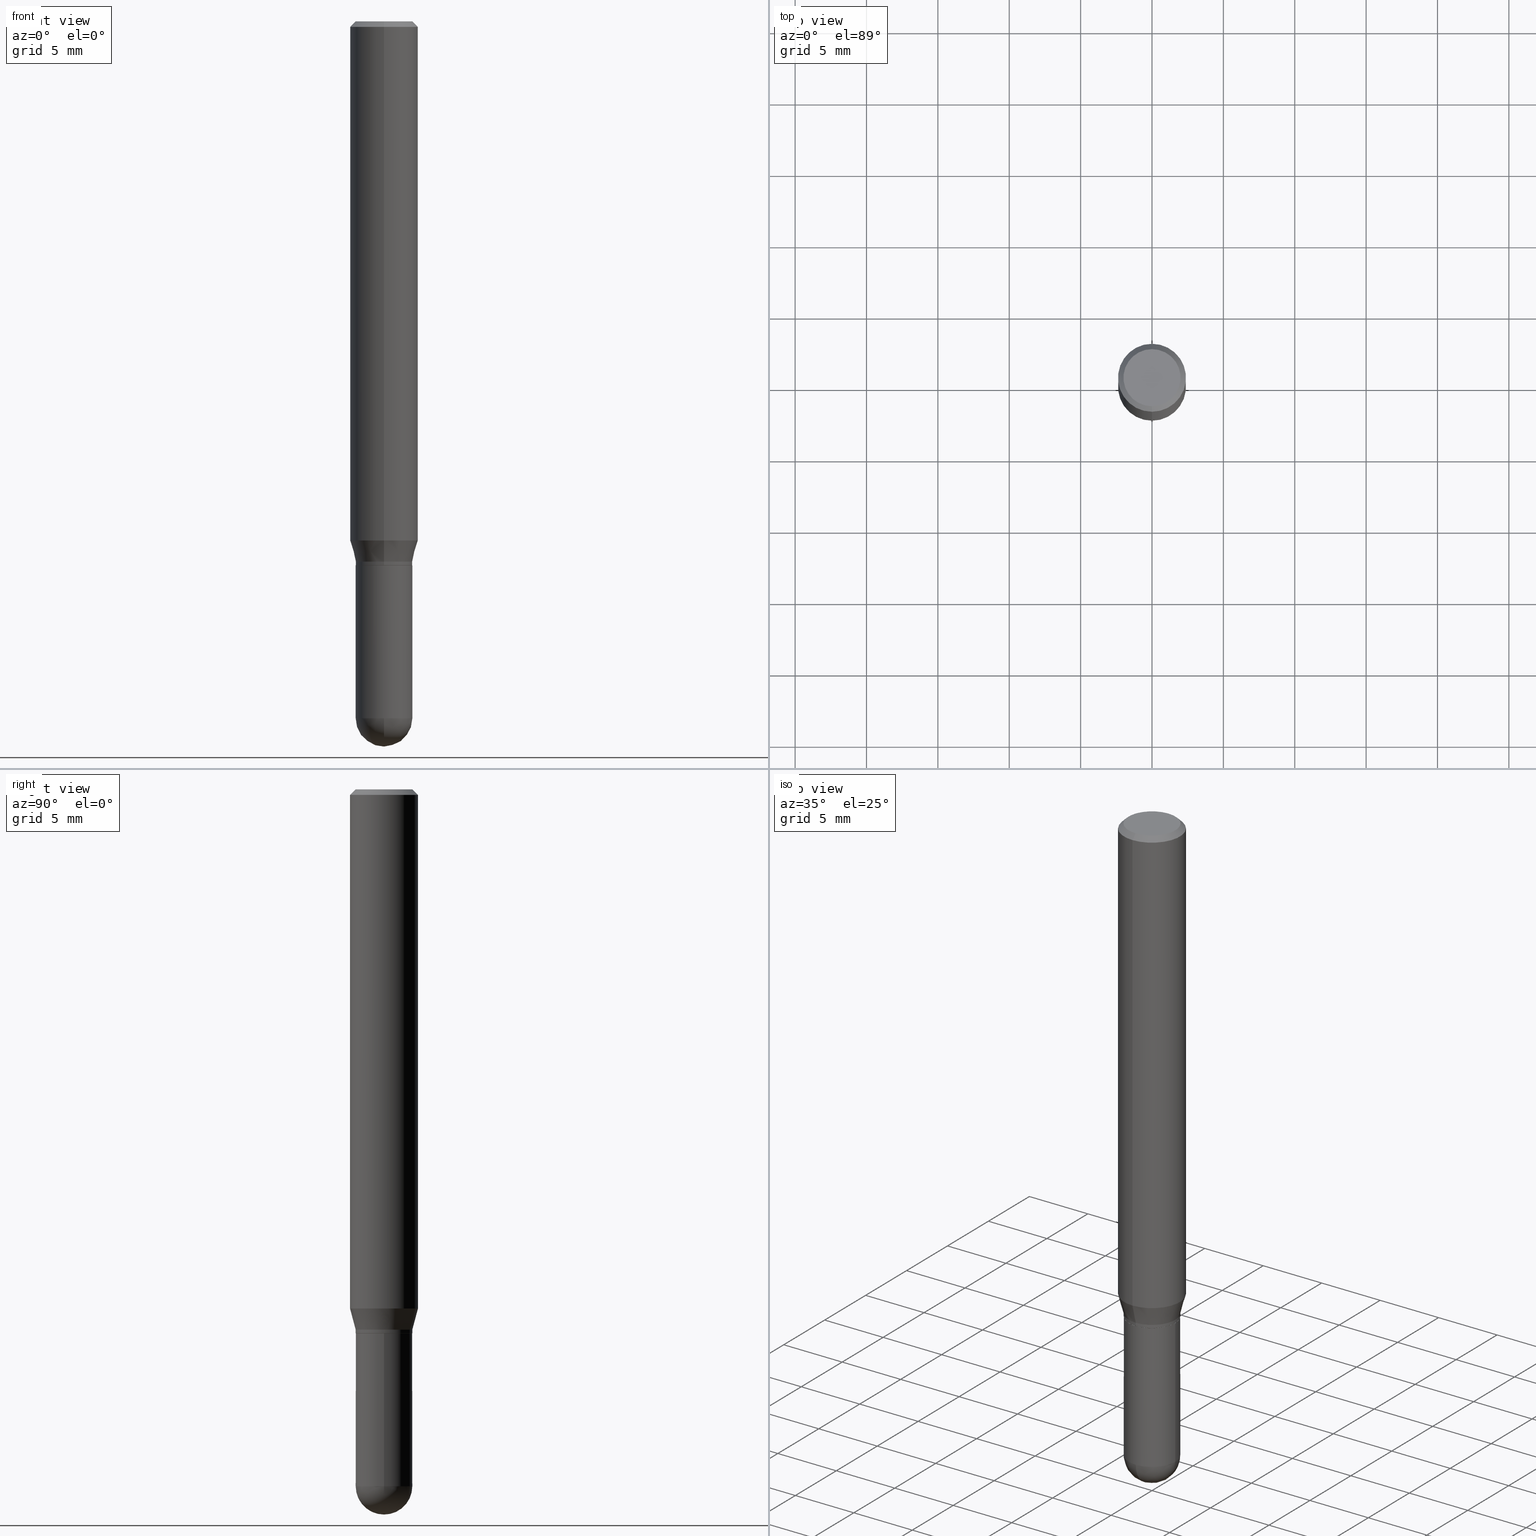
[diagram: canonical four-view strip — front | top / right | iso, engineering-drawing reading convention]
A machine part, canonical four-view strip (front | top / right | iso — engineering-drawing reading convention). The complete STEP part file that produces these views, byte-faithful:
ISO-10303-21;
HEADER;
FILE_DESCRIPTION (( 'STEP AP203' ),
    '1' );
FILE_NAME ('30480.STEP',
    '2024-03-08T15:25:17',
    ( '' ),
    ( '' ),
    'SwSTEP 2.0',
    'SolidWorks 2023',
    '' );
FILE_SCHEMA (( 'CONFIG_CONTROL_DESIGN' ));
ENDSEC;

DATA;
#1 = DIRECTION ( 'NONE',  ( -6.982962677686265922E-15, -1.000000000000000000, 3.520422672247761757E-15 ) ) ;
#2 = CIRCLE ( 'NONE', #281, 0.07810000000000000275 ) ;
#3 = SECURITY_CLASSIFICATION ( '', '', #407 ) ;
#4 = CARTESIAN_POINT ( 'NONE',  ( -6.546527510330875041E-16, -0.09375000000000001388, 3.273862860613314496E-16 ) ) ;
#5 = CC_DESIGN_PERSON_AND_ORGANIZATION_ASSIGNMENT ( #17, #60, ( #3 ) ) ;
#6 = DIRECTION ( 'NONE',  ( -2.445468806185136597E-29, 3.491481338843145583E-15, 1.000000000000000000 ) ) ;
#7 = EDGE_CURVE ( 'NONE', #346, #276, #386, .T. ) ;
#8 = ADVANCED_FACE ( 'NONE', ( #509 ), #461, .T. ) ;
#9 = CARTESIAN_POINT ( 'NONE',  ( 5.549338766286364898E-16, 0.07809999999999978071, -2.727346020414923541E-16 ) ) ;
#10 = CIRCLE ( 'NONE', #302, 0.09375000000000001388 ) ;
#11 = EDGE_LOOP ( 'NONE', ( #327, #487, #189, #274 ) ) ;
#12 = COORDINATED_UNIVERSAL_TIME_OFFSET ( 5, 0, .BEHIND. ) ;
#13 = DIRECTION ( 'NONE',  ( 6.982962677686265922E-15, 1.000000000000000000, -3.483106191921935160E-15 ) ) ;
#14 = UNCERTAINTY_MEASURE_WITH_UNIT (LENGTH_MEASURE( 1.000000000000000082E-05 ), #225, 'distance_accuracy_value', 'NONE');
#15 = DIRECTION ( 'NONE',  ( 2.438088387897960049E-29, -3.491481338843145188E-15, -1.000000000000000000 ) ) ;
#16 = ORIENTED_EDGE ( 'NONE', *, *, #104, .F. ) ;
#17 = PERSON_AND_ORGANIZATION ( #44, #429 ) ;
#18 = EDGE_CURVE ( 'NONE', #494, #300, #29, .T. ) ;
#19 = CARTESIAN_POINT ( 'NONE',  ( 0.07810000000000000275, -5.453693851272974364E-16, 3.808294061896625703E-30 ) ) ;
#20 = ORIENTED_EDGE ( 'NONE', *, *, #207, .F. ) ;
#21 = APPROVAL_STATUS ( 'not_yet_approved' ) ;
#22 = PLANE ( 'NONE',  #64 ) ;
#23 = CONICAL_SURFACE ( 'NONE', #322, 0.07760000000000000231, 0.7853981633974653764 ) ;
#24 = CIRCLE ( 'NONE', #308, 0.07760000000000000231 ) ;
#25 = ORIENTED_EDGE ( 'NONE', *, *, #95, .F. ) ;
#26 = ORIENTED_EDGE ( 'NONE', *, *, #186, .F. ) ;
#27 = COORDINATED_UNIVERSAL_TIME_OFFSET ( 5, 0, .BEHIND. ) ;
#28 = PRODUCT ( '30480', '30480', '', ( #244 ) ) ;
#29 = LINE ( 'NONE', #500, #191 ) ;
#30 = VERTEX_POINT ( 'NONE', #185 ) ;
#31 = AXIS2_PLACEMENT_3D ( 'NONE', #321, #395, #412 ) ;
#32 = CC_DESIGN_APPROVAL ( #411, ( #3 ) ) ;
#33 = LINE ( 'NONE', #280, #265 ) ;
#34 = CYLINDRICAL_SURFACE ( 'NONE', #235, 0.09375000000000001388 ) ;
#35 = CC_DESIGN_DATE_AND_TIME_ASSIGNMENT ( #328, #170, ( #440 ) ) ;
#36 = ORIENTED_EDGE ( 'NONE', *, *, #260, .T. ) ;
#37 = ORIENTED_EDGE ( 'NONE', *, *, #207, .T. ) ;
#38 = CONICAL_SURFACE ( 'NONE', #397, 0.09375000000000001388, 0.7853981633974480570 ) ;
#39 = CARTESIAN_POINT ( 'NONE',  ( 4.699946498607214373E-29, -6.710277985122641264E-15, -1.921900000000000164 ) ) ;
#40 = CC_DESIGN_APPROVAL ( #87, ( #245 ) ) ;
#41 = AXIS2_PLACEMENT_3D ( 'NONE', #325, #486, #288 ) ;
#42 = DIRECTION ( 'NONE',  ( 1.000000000000000000, -6.982962677686266711E-15, 0.000000000000000000 ) ) ;
#43 = CARTESIAN_POINT ( 'NONE',  ( -5.453693851272583878E-16, -0.07810000000000484610, -1.489999999999999769 ) ) ;
#44 = PERSON ( 'UNSPECIFIED', 'UNSPECIFIED', 'UNSPECIFIED', ('UNSPECIFIED'), ('UNSPECIFIED'), ('UNSPECIFIED') ) ;
#45 = DIRECTION ( 'NONE',  ( -4.851104656540962697E-15, -0.7071067811865497932, -0.7071067811865452413 ) ) ;
#46 = PERSON_AND_ORGANIZATION_ROLE ( 'design_owner' ) ;
#47 = CARTESIAN_POINT ( 'NONE',  ( 4.699946498607214373E-29, -6.710277985122641264E-15, -1.921900000000000164 ) ) ;
#48 = AXIS2_PLACEMENT_3D ( 'NONE', #285, #238, #444 ) ;
#49 = AXIS2_PLACEMENT_3D ( 'NONE', #329, #362, #164 ) ;
#50 = DIRECTION ( 'NONE',  ( -2.445022562880343100E-29, 3.492120384654201603E-15, 1.000000000000000000 ) ) ;
#51 = CALENDAR_DATE ( 2024, 8, 3 ) ;
#52 = DIRECTION ( 'NONE',  ( -2.445022562880342820E-29, 3.492120384654201603E-15, 1.000000000000000000 ) ) ;
#53 = EDGE_CURVE ( 'NONE', #348, #100, #97, .T. ) ;
#54 = AXIS2_PLACEMENT_3D ( 'NONE', #47, #482, #153 ) ;
#55 = FACE_OUTER_BOUND ( 'NONE', #94, .T. ) ;
#56 = ORIENTED_EDGE ( 'NONE', *, *, #223, .F. ) ;
#57 = DATE_TIME_ROLE ( 'classification_date' ) ;
#58 = CARTESIAN_POINT ( 'NONE',  ( 6.661338147751288313E-16, 0.09374999999999500400, -1.431593404861545960 ) ) ;
#59 = ORIENTED_EDGE ( 'NONE', *, *, #508, .F. ) ;
#60 = PERSON_AND_ORGANIZATION_ROLE ( 'classification_officer' ) ;
#61 = FACE_OUTER_BOUND ( 'NONE', #148, .T. ) ;
#62 = ORIENTED_EDGE ( 'NONE', *, *, #352, .F. ) ;
#63 = DIRECTION ( 'NONE',  ( 2.445022562880342820E-29, -3.492120384654201603E-15, -1.000000000000000000 ) ) ;
#64 = AXIS2_PLACEMENT_3D ( 'NONE', #130, #15, #331 ) ;
#65 = LOCAL_TIME ( 10, 25, 17.00000000000000000, #485 ) ;
#66 = ORIENTED_EDGE ( 'NONE', *, *, #361, .T. ) ;
#67 = DIRECTION ( 'NONE',  ( 1.000000000000000000, -6.982962677686266711E-15, 4.876176775795935232E-29 ) ) ;
#68 = VERTEX_POINT ( 'NONE', #305 ) ;
#69 = COORDINATED_UNIVERSAL_TIME_OFFSET ( 5, 0, .BEHIND. ) ;
#70 = PRODUCT_RELATED_PRODUCT_CATEGORY ( 'detail', '', ( #28 ) ) ;
#71 = ORIENTED_EDGE ( 'NONE', *, *, #120, .F. ) ;
#72 = DIRECTION ( 'NONE',  ( -2.445022562880343100E-29, 3.492120384654201603E-15, 1.000000000000000000 ) ) ;
#73 = ORIENTED_EDGE ( 'NONE', *, *, #507, .F. ) ;
#74 = CIRCLE ( 'NONE', #31, 0.09375000000000001388 ) ;
#75 = ORIENTED_EDGE ( 'NONE', *, *, #178, .T. ) ;
#76 = DIRECTION ( 'NONE',  ( 4.937700262164546464E-15, 0.7071067811865449082, -0.7071067811865501263 ) ) ;
#77 = EDGE_LOOP ( 'NONE', ( #134, #146, #139, #406 ) ) ;
#78 = CARTESIAN_POINT ( 'NONE',  ( 0.000000000000000000, 0.000000000000000000, 0.000000000000000000 ) ) ;
#79 = CARTESIAN_POINT ( 'NONE',  ( 3.667533844320509501E-31, -5.238180576981294836E-17, -0.01499999999999997863 ) ) ;
#80 = CIRCLE ( 'NONE', #48, 0.09375000000000001388 ) ;
#81 = AXIS2_PLACEMENT_3D ( 'NONE', #241, #248, #158 ) ;
#82 = DIRECTION ( 'NONE',  ( -2.445022562880343100E-29, 3.492120384654201603E-15, 1.000000000000000000 ) ) ;
#83 = PERSON_AND_ORGANIZATION ( #44, #429 ) ;
#84 = FACE_OUTER_BOUND ( 'NONE', #142, .T. ) ;
#85 = CARTESIAN_POINT ( 'NONE',  ( 6.661338147751291272E-16, 0.09374999999999995837, -0.01500000000000030476 ) ) ;
#86 = APPLICATION_PROTOCOL_DEFINITION ( 'international standard', 'config_control_design', 1994, #424 ) ;
#87 = APPROVAL ( #340, 'UNSPECIFIED' ) ;
#88 = CIRCLE ( 'NONE', #49, 0.07809999999999991949 ) ;
#89 = CARTESIAN_POINT ( 'NONE',  ( 3.667533844320514651E-29, -5.238180576981301616E-15, -1.500000000000000222 ) ) ;
#90 = ADVANCED_FACE ( 'NONE', ( #466 ), #34, .T. ) ;
#91 = SPHERICAL_SURFACE ( 'NONE', #451, 0.07809999999999996112 ) ;
#92 = APPROVAL_DATE_TIME ( #324, #421 ) ;
#93 = DIRECTION ( 'NONE',  ( 2.445022562880343100E-29, -3.492120384654201603E-15, -1.000000000000000000 ) ) ;
#94 = EDGE_LOOP ( 'NONE', ( #422, #106 ) ) ;
#95 = EDGE_CURVE ( 'NONE', #233, #290, #242, .T. ) ;
#96 = DIRECTION ( 'NONE',  ( -2.445022562880343100E-29, 3.492120384654201603E-15, 1.000000000000000000 ) ) ;
#97 = CIRCLE ( 'NONE', #264, 0.07810000000000000275 ) ;
#98 = AXIS2_PLACEMENT_3D ( 'NONE', #78, #229, #476 ) ;
#99 = FACE_OUTER_BOUND ( 'NONE', #388, .T. ) ;
#100 = VERTEX_POINT ( 'NONE', #353 ) ;
#101 = CARTESIAN_POINT ( 'NONE',  ( 3.667533844320514651E-29, -5.238180576981301616E-15, -1.500000000000000222 ) ) ;
#102 = EDGE_LOOP ( 'NONE', ( #430, #224, #211, #71 ) ) ;
#103 = CC_DESIGN_PERSON_AND_ORGANIZATION_ASSIGNMENT ( #492, #376, ( #245 ) ) ;
#104 = EDGE_CURVE ( 'NONE', #491, #263, #163, .T. ) ;
#105 = EDGE_CURVE ( 'NONE', #300, #290, #434, .T. ) ;
#106 = ORIENTED_EDGE ( 'NONE', *, *, #151, .T. ) ;
#107 = ADVANCED_FACE ( 'NONE', ( #84 ), #38, .T. ) ;
#108 = VECTOR ( 'NONE', #161, 39.37007874015748143 ) ;
#109 = APPROVAL_ROLE ( '' ) ;
#110 = DIMENSIONAL_EXPONENTS ( 1.000000000000000000, 0.000000000000000000, 0.000000000000000000, 0.000000000000000000, 0.000000000000000000, 0.000000000000000000, 0.000000000000000000 ) ;
#111 = ORIENTED_EDGE ( 'NONE', *, *, #368, .F. ) ;
#112 = ORIENTED_EDGE ( 'NONE', *, *, #394, .T. ) ;
#113 = EDGE_CURVE ( 'NONE', #68, #472, #184, .T. ) ;
#114 = ORIENTED_EDGE ( 'NONE', *, *, #502, .T. ) ;
#115 = VECTOR ( 'NONE', #357, 39.37007874015748143 ) ;
#116 = AXIS2_PLACEMENT_3D ( 'NONE', #304, #371, #67 ) ;
#117 =( NAMED_UNIT ( * ) SI_UNIT ( $, .STERADIAN. ) SOLID_ANGLE_UNIT ( ) );
#118 = EDGE_LOOP ( 'NONE', ( #216, #228, #269, #381, #448 ) ) ;
#119 = CARTESIAN_POINT ( 'NONE',  ( 4.693267649888723399E-29, -6.719842476623982487E-15, -1.921900000000000164 ) ) ;
#120 = EDGE_CURVE ( 'NONE', #346, #494, #364, .T. ) ;
#121 = LINE ( 'NONE', #127, #251 ) ;
#122 = DIRECTION ( 'NONE',  ( -6.982962677686265922E-15, -1.000000000000000000, 3.497884755011876582E-15 ) ) ;
#123 = CARTESIAN_POINT ( 'NONE',  ( 4.693267649888723399E-29, -6.719842476623982487E-15, -1.921900000000000164 ) ) ;
#124 = AXIS2_PLACEMENT_3D ( 'NONE', #320, #82, #441 ) ;
#125 = DIRECTION ( 'NONE',  ( -6.982962677686265922E-15, -1.000000000000000000, 2.913971193241880372E-15 ) ) ;
#126 = DIRECTION ( 'NONE',  ( -6.982962677686264344E-15, -1.000000000000000000, 3.492120384654201209E-15 ) ) ;
#127 = CARTESIAN_POINT ( 'NONE',  ( -5.418779037884175500E-16, -0.07760000000000523424, -1.499999999999999778 ) ) ;
#128 = LINE ( 'NONE', #160, #115 ) ;
#129 = AXIS2_PLACEMENT_3D ( 'NONE', #512, #307, #234 ) ;
#130 = CARTESIAN_POINT ( 'NONE',  ( 5.453693851273340198E-16, 0.07809999999999475695, -1.500000000000000222 ) ) ;
#131 = CARTESIAN_POINT ( 'NONE',  ( -5.453693851272600641E-16, -0.07810000000000515141, -1.499500000000000055 ) ) ;
#132 = ORIENTED_EDGE ( 'NONE', *, *, #480, .F. ) ;
#133 = COORDINATED_UNIVERSAL_TIME_OFFSET ( 5, 0, .BEHIND. ) ;
#134 = ORIENTED_EDGE ( 'NONE', *, *, #178, .F. ) ;
#135 = FACE_OUTER_BOUND ( 'NONE', #118, .T. ) ;
#136 = AXIS2_PLACEMENT_3D ( 'NONE', #442, #363, #199 ) ;
#137 = VERTEX_POINT ( 'NONE', #202 ) ;
#138 = CARTESIAN_POINT ( 'NONE',  ( -5.453693851272958587E-16, -0.07809999999999978071, 2.727346020414923541E-16 ) ) ;
#139 = ORIENTED_EDGE ( 'NONE', *, *, #105, .T. ) ;
#140 = DATE_AND_TIME ( #173, #323 ) ;
#141 = FACE_OUTER_BOUND ( 'NONE', #465, .T. ) ;
#142 = EDGE_LOOP ( 'NONE', ( #56, #498, #37, #59 ) ) ;
#143 = APPROVAL_PERSON_ORGANIZATION ( #370, #87, #109 ) ;
#144 = DIRECTION ( 'NONE',  ( -1.807323732225326589E-15, -0.2588190451025176864, 0.9659258262890690894 ) ) ;
#145 = DIRECTION ( 'NONE',  ( 1.000000000000000000, -6.982962677686266711E-15, 0.000000000000000000 ) ) ;
#146 = ORIENTED_EDGE ( 'NONE', *, *, #480, .T. ) ;
#147 = FACE_OUTER_BOUND ( 'NONE', #306, .T. ) ;
#148 = EDGE_LOOP ( 'NONE', ( #25, #62, #231, #114 ) ) ;
#149 = AXIS2_PLACEMENT_3D ( 'NONE', #314, #50, #398 ) ;
#150 = PRODUCT_DEFINITION_SHAPE ( 'NONE', 'NONE',  #440 ) ;
#151 = EDGE_CURVE ( 'NONE', #100, #348, #2, .T. ) ;
#152 = DIRECTION ( 'NONE',  ( -2.445022562880343100E-29, 3.492120384654201603E-15, 1.000000000000000000 ) ) ;
#153 = DIRECTION ( 'NONE',  ( 1.000000000000000000, -6.982962677686266711E-15, 0.000000000000000000 ) ) ;
#154 = FACE_OUTER_BOUND ( 'NONE', #504, .T. ) ;
#155 = CLOSED_SHELL ( 'NONE', ( #425, #443, #107, #205, #464, #8, #90, #330, #299, #404, #218, #457 ) ) ;
#156 = AXIS2_PLACEMENT_3D ( 'NONE', #414, #294, #463 ) ;
#157 = CYLINDRICAL_SURFACE ( 'NONE', #124, 0.09375000000000001388 ) ;
#158 = DIRECTION ( 'NONE',  ( 1.000000000000000000, 0.000000000000000000, 0.000000000000000000 ) ) ;
#159 = EDGE_CURVE ( 'NONE', #271, #137, #243, .T. ) ;
#160 = CARTESIAN_POINT ( 'NONE',  ( 5.513811629498742455E-16, 0.07759999999999475651, -1.500000000000000444 ) ) ;
#161 = DIRECTION ( 'NONE',  ( -2.445022562880342820E-29, 3.492120384654201603E-15, 1.000000000000000000 ) ) ;
#162 = APPROVAL_ROLE ( '' ) ;
#163 = CIRCLE ( 'NONE', #136, 0.07809999999999991949 ) ;
#164 = DIRECTION ( 'NONE',  ( -6.982962677686265133E-15, -1.000000000000000000, 3.497884755011864354E-15 ) ) ;
#165 = EDGE_CURVE ( 'NONE', #379, #68, #333, .T. ) ;
#166 = EDGE_LOOP ( 'NONE', ( #309, #36, #336, #258, #303 ) ) ;
#167 = CALENDAR_DATE ( 2024, 8, 3 ) ;
#168 = CARTESIAN_POINT ( 'NONE',  ( -5.353897400011380051E-46, 7.646740987903862261E-32, 2.189712880892295595E-17 ) ) ;
#169 = EDGE_LOOP ( 'NONE', ( #418, #75, #20, #458 ) ) ;
#170 = DATE_TIME_ROLE ( 'creation_date' ) ;
#171 = DIRECTION ( 'NONE',  ( -2.445468806185136877E-29, 3.491481338843145188E-15, 1.000000000000000000 ) ) ;
#172 = EDGE_LOOP ( 'NONE', ( #222, #112, #339, #455 ) ) ;
#173 = CALENDAR_DATE ( 2024, 8, 3 ) ;
#174 = FACE_OUTER_BOUND ( 'NONE', #166, .T. ) ;
#175 = CIRCLE ( 'NONE', #477, 0.07875000000000001443 ) ;
#176 = CIRCLE ( 'NONE', #478, 0.07810000000000000275 ) ;
#177 = ORIENTED_EDGE ( 'NONE', *, *, #278, .F. ) ;
#178 = EDGE_CURVE ( 'NONE', #276, #221, #393, .T. ) ;
#179 = FACE_OUTER_BOUND ( 'NONE', #426, .T. ) ;
#180 = DIRECTION ( 'NONE',  ( -2.445022562880342820E-29, 3.492120384654201603E-15, 1.000000000000000000 ) ) ;
#181 = ORIENTED_EDGE ( 'NONE', *, *, #361, .F. ) ;
#182 = CYLINDRICAL_SURFACE ( 'NONE', #438, 0.07809999999999978071 ) ;
#183 = DIRECTION ( 'NONE',  ( 1.839019923739596765E-15, 0.2588190451025244587, 0.9659258262890673130 ) ) ;
#184 = CIRCLE ( 'NONE', #501, 0.07810000000000000275 ) ;
#185 = CARTESIAN_POINT ( 'NONE',  ( -5.418779037884175500E-16, -0.07760000000000523424, -1.499999999999999778 ) ) ;
#186 = EDGE_CURVE ( 'NONE', #30, #263, #121, .T. ) ;
#187 = ORIENTED_EDGE ( 'NONE', *, *, #7, .F. ) ;
#188 = SPHERICAL_SURFACE ( 'NONE', #273, 0.07809999999999996112 ) ;
#189 = ORIENTED_EDGE ( 'NONE', *, *, #337, .F. ) ;
#190 = EDGE_CURVE ( 'NONE', #375, #491, #128, .T. ) ;
#191 = VECTOR ( 'NONE', #144, 39.37007874015748854 ) ;
#192 = ORIENTED_EDGE ( 'NONE', *, *, #190, .T. ) ;
#193 = CONICAL_SURFACE ( 'NONE', #209, 0.09375000000000001388, 0.7853981633974480570 ) ;
#194 = FACE_OUTER_BOUND ( 'NONE', #172, .T. ) ;
#195 = CARTESIAN_POINT ( 'NONE',  ( 4.699946498607214373E-29, -6.710277985122641264E-15, -1.921900000000000164 ) ) ;
#196 = DIRECTION ( 'NONE',  ( 2.445022562880343100E-29, -3.492120384654201603E-15, -1.000000000000000000 ) ) ;
#197 = PERSON_AND_ORGANIZATION ( #44, #429 ) ;
#198 = DIRECTION ( 'NONE',  ( -1.000000000000000000, 7.105427357601001070E-15, -4.926315508542082329E-29 ) ) ;
#199 = DIRECTION ( 'NONE',  ( -6.982962677686265133E-15, -1.000000000000000000, 3.497884755011864354E-15 ) ) ;
#200 = APPROVAL_PERSON_ORGANIZATION ( #197, #421, #162 ) ;
#201 = CARTESIAN_POINT ( 'NONE',  ( 6.105338457019004099E-16, 0.07809999999999443776, -1.490000000000000213 ) ) ;
#202 = CARTESIAN_POINT ( 'NONE',  ( 5.453693851273441764E-16, 0.07809999999999325815, -1.921900000000000386 ) ) ;
#203 = CARTESIAN_POINT ( 'NONE',  ( 4.699946498607214373E-29, -6.710277985122641264E-15, -1.921900000000000164 ) ) ;
#204 = CARTESIAN_POINT ( 'NONE',  ( -5.353897400011380051E-46, 7.646740987903862261E-32, 2.189712880892295595E-17 ) ) ;
#205 = ADVANCED_FACE ( 'NONE', ( #282 ), #157, .T. ) ;
#206 = DIRECTION ( 'NONE',  ( -6.982962677686264344E-15, -1.000000000000000000, 3.492120384654201209E-15 ) ) ;
#207 = EDGE_CURVE ( 'NONE', #290, #221, #80, .T. ) ;
#208 = CARTESIAN_POINT ( 'NONE',  ( -0.07810000000000000275, 5.549338766286382647E-16, -3.841688305489081275E-30 ) ) ;
#209 = AXIS2_PLACEMENT_3D ( 'NONE', #215, #93, #13 ) ;
#210 = LOCAL_TIME ( 10, 25, 17.00000000000000000, #133 ) ;
#211 = ORIENTED_EDGE ( 'NONE', *, *, #278, .T. ) ;
#212 = ORIENTED_EDGE ( 'NONE', *, *, #186, .T. ) ;
#213 = CALENDAR_DATE ( 2024, 8, 3 ) ;
#214 = DIRECTION ( 'NONE',  ( -6.982962677686265922E-15, -1.000000000000000000, 3.520422672247761757E-15 ) ) ;
#215 = CARTESIAN_POINT ( 'NONE',  ( 3.667533844320509501E-31, -5.238180576981294836E-17, -0.01499999999999997863 ) ) ;
#216 = ORIENTED_EDGE ( 'NONE', *, *, #260, .F. ) ;
#217 = SHAPE_DEFINITION_REPRESENTATION ( #150, #474 ) ;
#218 = ADVANCED_FACE ( 'NONE', ( #154 ), #23, .T. ) ;
#219 = CIRCLE ( 'NONE', #226, 0.07875000000000001443 ) ;
#220 = DIRECTION ( 'NONE',  ( 6.982962677686265922E-15, 1.000000000000000000, -3.492120384654201603E-15 ) ) ;
#221 = VERTEX_POINT ( 'NONE', #85 ) ;
#222 = ORIENTED_EDGE ( 'NONE', *, *, #159, .F. ) ;
#223 = EDGE_CURVE ( 'NONE', #233, #296, #175, .T. ) ;
#224 = ORIENTED_EDGE ( 'NONE', *, *, #104, .T. ) ;
#225 =( CONVERSION_BASED_UNIT ( 'INCH', #272 ) LENGTH_UNIT ( ) NAMED_UNIT ( #110 ) );
#226 = AXIS2_PLACEMENT_3D ( 'NONE', #168, #319, #206 ) ;
#227 = LOCAL_TIME ( 10, 25, 17.00000000000000000, #27 ) ;
#228 = ORIENTED_EDGE ( 'NONE', *, *, #165, .T. ) ;
#229 = DIRECTION ( 'NONE',  ( -2.445022562880343100E-29, 3.492120384654201603E-15, 1.000000000000000000 ) ) ;
#230 = CC_DESIGN_PERSON_AND_ORGANIZATION_ASSIGNMENT ( #83, #46, ( #28 ) ) ;
#231 = ORIENTED_EDGE ( 'NONE', *, *, #508, .T. ) ;
#232 = EDGE_CURVE ( 'NONE', #491, #346, #283, .T. ) ;
#233 = VERTEX_POINT ( 'NONE', #240 ) ;
#234 = DIRECTION ( 'NONE',  ( -6.982962677686265922E-15, -1.000000000000000000, 3.497884755011876582E-15 ) ) ;
#235 = AXIS2_PLACEMENT_3D ( 'NONE', #279, #318, #360 ) ;
#236 = DIRECTION ( 'NONE',  ( -2.445468806185136597E-29, 3.491481338843145583E-15, 1.000000000000000000 ) ) ;
#237 = DIRECTION ( 'NONE',  ( -1.000000000000000000, 6.982962677686265922E-15, -4.883557194083112901E-29 ) ) ;
#238 = DIRECTION ( 'NONE',  ( -2.445022562880343100E-29, 3.492120384654201603E-15, 1.000000000000000000 ) ) ;
#239 = EDGE_CURVE ( 'NONE', #300, #276, #74, .T. ) ;
#240 = CARTESIAN_POINT ( 'NONE',  ( -5.917179523077944868E-16, -0.07875000000000001443, 2.969016091004413093E-16 ) ) ;
#241 = CARTESIAN_POINT ( 'NONE',  ( 0.000000000000000000, 0.000000000000000000, 0.000000000000000000 ) ) ;
#242 = LINE ( 'NONE', #355, #293 ) ;
#243 = CIRCLE ( 'NONE', #428, 0.07809999999999996112 ) ;
#244 = MECHANICAL_CONTEXT ( 'NONE', #424, 'mechanical' ) ;
#245 = PRODUCT_DEFINITION_FORMATION_WITH_SPECIFIED_SOURCE ( 'ANY', '', #28, .NOT_KNOWN. ) ;
#246 = DIRECTION ( 'NONE',  ( 1.000000000000000000, -6.982962677686266711E-15, 0.000000000000000000 ) ) ;
#247 = DIRECTION ( 'NONE',  ( 1.000000000000000000, -6.982962677686265922E-15, 4.883557194083112340E-29 ) ) ;
#248 = DIRECTION ( 'NONE',  ( 0.000000000000000000, 0.000000000000000000, 1.000000000000000000 ) ) ;
#249 = ORIENTED_EDGE ( 'NONE', *, *, #7, .T. ) ;
#250 = CALENDAR_DATE ( 2024, 8, 3 ) ;
#251 = VECTOR ( 'NONE', #475, 39.37007874015748143 ) ;
#252 = DIRECTION ( 'NONE',  ( -6.982962677686265922E-15, -1.000000000000000000, 3.520422672247761757E-15 ) ) ;
#253 = CONICAL_SURFACE ( 'NONE', #378, 0.07760000000000000231, 0.7853981633974653764 ) ;
#254 = CARTESIAN_POINT ( 'NONE',  ( 5.499083108677934443E-16, 0.07875000000000001443, -2.640559158870569216E-16 ) ) ;
#255 = ORIENTED_EDGE ( 'NONE', *, *, #120, .T. ) ;
#256 = PERSON_AND_ORGANIZATION_ROLE ( 'creator' ) ;
#257 = CARTESIAN_POINT ( 'NONE',  ( 4.693267649888723399E-29, -6.719842476623982487E-15, -1.921900000000000164 ) ) ;
#258 = ORIENTED_EDGE ( 'NONE', *, *, #313, .F. ) ;
#259 = PERSON_AND_ORGANIZATION ( #44, #429 ) ;
#260 = EDGE_CURVE ( 'NONE', #379, #100, #454, .T. ) ;
#261 = CARTESIAN_POINT ( 'NONE',  ( 0.000000000000000000, 0.000000000000000000, 0.000000000000000000 ) ) ;
#262 = DIRECTION ( 'NONE',  ( -2.445468806185136877E-29, 3.491481338843145188E-15, 1.000000000000000000 ) ) ;
#263 = VERTEX_POINT ( 'NONE', #131 ) ;
#264 = AXIS2_PLACEMENT_3D ( 'NONE', #383, #344, #145 ) ;
#265 = VECTOR ( 'NONE', #76, 39.37007874015748143 ) ;
#266 = ADVANCED_FACE ( 'NONE', ( #326 ), #91, .T. ) ;
#267 = ORIENTED_EDGE ( 'NONE', *, *, #232, .T. ) ;
#268 = FACE_OUTER_BOUND ( 'NONE', #413, .T. ) ;
#269 = ORIENTED_EDGE ( 'NONE', *, *, #113, .T. ) ;
#270 = ADVANCED_FACE ( 'NONE', ( #55 ), #22, .F. ) ;
#271 = VERTEX_POINT ( 'NONE', #291 ) ;
#272 = LENGTH_MEASURE_WITH_UNIT ( LENGTH_MEASURE( 0.02539999999999999897 ), #505 );
#273 = AXIS2_PLACEMENT_3D ( 'NONE', #119, #237, #310 ) ;
#274 = ORIENTED_EDGE ( 'NONE', *, *, #113, .F. ) ;
#275 = DIRECTION ( 'NONE',  ( 1.000000000000000000, -6.982962677686266711E-15, 4.876176775795935232E-29 ) ) ;
#276 = VERTEX_POINT ( 'NONE', #58 ) ;
#277 = CARTESIAN_POINT ( 'NONE',  ( 0.07810000000000000275, -6.519119381820976762E-15, -1.921900000000000164 ) ) ;
#278 = EDGE_CURVE ( 'NONE', #263, #494, #496, .T. ) ;
#279 = CARTESIAN_POINT ( 'NONE',  ( 0.000000000000000000, 0.000000000000000000, 0.000000000000000000 ) ) ;
#280 = CARTESIAN_POINT ( 'NONE',  ( 6.546527510330878985E-16, 0.09374999999999995837, -0.01500000000000030476 ) ) ;
#281 = AXIS2_PLACEMENT_3D ( 'NONE', #479, #6, #42 ) ;
#282 = FACE_OUTER_BOUND ( 'NONE', #169, .T. ) ;
#283 = LINE ( 'NONE', #9, #108 ) ;
#284 = DIRECTION ( 'NONE',  ( -2.445022562880343100E-29, 3.492120384654201603E-15, 1.000000000000000000 ) ) ;
#285 = CARTESIAN_POINT ( 'NONE',  ( 3.667533844320509501E-31, -5.238180576981294836E-17, -0.01499999999999997863 ) ) ;
#286 = VECTOR ( 'NONE', #52, 39.37007874015748143 ) ;
#287 = CIRCLE ( 'NONE', #385, 0.07809999999999996112 ) ;
#288 = DIRECTION ( 'NONE',  ( -6.982962677686265922E-15, -1.000000000000000000, 3.520422672247761757E-15 ) ) ;
#289 = DESIGN_CONTEXT ( 'detailed design', #436, 'design' ) ;
#290 = VERTEX_POINT ( 'NONE', #415 ) ;
#291 = CARTESIAN_POINT ( 'NONE',  ( 4.887598188011028267E-29, -6.987744923436962171E-15, -2.000000000000000000 ) ) ;
#292 = ORIENTED_EDGE ( 'NONE', *, *, #239, .F. ) ;
#293 = VECTOR ( 'NONE', #45, 39.37007874015748143 ) ;
#294 = DIRECTION ( 'NONE',  ( -2.445022562880342820E-29, 3.492120384654201603E-15, 1.000000000000000000 ) ) ;
#295 = CC_DESIGN_SECURITY_CLASSIFICATION ( #3, ( #245 ) ) ;
#296 = VERTEX_POINT ( 'NONE', #450 ) ;
#297 = PLANE ( 'NONE',  #349 ) ;
#298 = APPROVAL_ROLE ( '' ) ;
#299 = ADVANCED_FACE ( 'NONE', ( #99 ), #297, .F. ) ;
#300 = VERTEX_POINT ( 'NONE', #409 ) ;
#301 = VECTOR ( 'NONE', #391, 39.37007874015748143 ) ;
#302 = AXIS2_PLACEMENT_3D ( 'NONE', #473, #72, #125 ) ;
#303 = ORIENTED_EDGE ( 'NONE', *, *, #337, .T. ) ;
#304 = CARTESIAN_POINT ( 'NONE',  ( 0.000000000000000000, 0.000000000000000000, 0.000000000000000000 ) ) ;
#305 = CARTESIAN_POINT ( 'NONE',  ( -5.549338766285910317E-16, -0.07810000000000670572, -1.921899999999999720 ) ) ;
#306 = EDGE_LOOP ( 'NONE', ( #432, #249, #292, #467 ) ) ;
#307 = DIRECTION ( 'NONE',  ( -2.445022562880343100E-29, 3.492120384654201603E-15, 1.000000000000000000 ) ) ;
#308 = AXIS2_PLACEMENT_3D ( 'NONE', #449, #96, #252 ) ;
#309 = ORIENTED_EDGE ( 'NONE', *, *, #489, .T. ) ;
#310 = DIRECTION ( 'NONE',  ( 6.982962677686265922E-15, 1.000000000000000000, -3.497884755011862382E-15 ) ) ;
#311 = DIRECTION ( 'NONE',  ( -6.982962677686265922E-15, -1.000000000000000000, 3.497884755011876582E-15 ) ) ;
#312 = CYLINDRICAL_SURFACE ( 'NONE', #98, 0.07809999999999978071 ) ;
#313 = EDGE_CURVE ( 'NONE', #472, #348, #372, .T. ) ;
#314 = CARTESIAN_POINT ( 'NONE',  ( 3.643083618691710816E-29, -5.203259373134759868E-15, -1.489999999999999991 ) ) ;
#315 = DIRECTION ( 'NONE',  ( -2.445468806185136597E-29, 3.491481338843145583E-15, 1.000000000000000000 ) ) ;
#316 = DIRECTION ( 'NONE',  ( -2.445022562880343100E-29, 3.492120384654201603E-15, 1.000000000000000000 ) ) ;
#317 = AXIS2_PLACEMENT_3D ( 'NONE', #261, #315, #275 ) ;
#318 = DIRECTION ( 'NONE',  ( -2.445022562880343100E-29, 3.492120384654201603E-15, 1.000000000000000000 ) ) ;
#319 = DIRECTION ( 'NONE',  ( -2.445022562880343100E-29, 3.492120384654201603E-15, 1.000000000000000000 ) ) ;
#320 = CARTESIAN_POINT ( 'NONE',  ( 0.000000000000000000, 0.000000000000000000, 0.000000000000000000 ) ) ;
#321 = CARTESIAN_POINT ( 'NONE',  ( 3.500278175757173363E-29, -4.999296511653519155E-15, -1.431593404861545737 ) ) ;
#322 = AXIS2_PLACEMENT_3D ( 'NONE', #89, #284, #1 ) ;
#323 = LOCAL_TIME ( 10, 25, 17.00000000000000000, #69 ) ;
#324 = DATE_AND_TIME ( #51, #65 ) ;
#325 = CARTESIAN_POINT ( 'NONE',  ( 3.667533844320514651E-29, -5.238180576981301616E-15, -1.500000000000000222 ) ) ;
#326 = FACE_OUTER_BOUND ( 'NONE', #11, .T. ) ;
#327 = ORIENTED_EDGE ( 'NONE', *, *, #394, .F. ) ;
#328 = DATE_AND_TIME ( #167, #350 ) ;
#329 = CARTESIAN_POINT ( 'NONE',  ( 3.666311333039075664E-29, -5.236434516788975357E-15, -1.499500000000000277 ) ) ;
#330 = ADVANCED_FACE ( 'NONE', ( #61 ), #193, .T. ) ;
#331 = DIRECTION ( 'NONE',  ( -1.000000000000000000, 6.982962677686265922E-15, -4.876176775795935793E-29 ) ) ;
#332 = EDGE_LOOP ( 'NONE', ( #187, #255, #506, #132 ) ) ;
#333 = CIRCLE ( 'NONE', #54, 0.07810000000000000275 ) ;
#334 = CIRCLE ( 'NONE', #41, 0.07760000000000000231 ) ;
#335 = CC_DESIGN_DATE_AND_TIME_ASSIGNMENT ( #460, #57, ( #3 ) ) ;
#336 = ORIENTED_EDGE ( 'NONE', *, *, #53, .F. ) ;
#337 = EDGE_CURVE ( 'NONE', #472, #137, #356, .T. ) ;
#338 = DIRECTION ( 'NONE',  ( -2.445022562880343100E-29, 3.492120384654201603E-15, 1.000000000000000000 ) ) ;
#339 = ORIENTED_EDGE ( 'NONE', *, *, #165, .F. ) ;
#340 = APPROVAL_STATUS ( 'not_yet_approved' ) ;
#341 = CARTESIAN_POINT ( 'NONE',  ( 3.643083618691710816E-29, -5.203259373134759868E-15, -1.489999999999999991 ) ) ;
#342 = CYLINDRICAL_SURFACE ( 'NONE', #116, 0.07810000000000000275 ) ;
#343 = CLOSED_SHELL ( 'NONE', ( #446, #495, #270, #266, #396 ) ) ;
#344 = DIRECTION ( 'NONE',  ( -2.445468806185136597E-29, 3.491481338843145583E-15, 1.000000000000000000 ) ) ;
#345 = CC_DESIGN_PERSON_AND_ORGANIZATION_ASSIGNMENT ( #403, #367, ( #440 ) ) ;
#346 = VERTEX_POINT ( 'NONE', #201 ) ;
#347 = DIRECTION ( 'NONE',  ( -2.445022562880343100E-29, 3.492120384654201603E-15, 1.000000000000000000 ) ) ;
#348 = VERTEX_POINT ( 'NONE', #401 ) ;
#349 = AXIS2_PLACEMENT_3D ( 'NONE', #254, #63, #220 ) ;
#350 = LOCAL_TIME ( 10, 25, 17.00000000000000000, #12 ) ;
#351 = CARTESIAN_POINT ( 'NONE',  ( 5.549338766286719885E-16, 0.07809999999999443776, -1.490000000000000213 ) ) ;
#352 = EDGE_CURVE ( 'NONE', #296, #233, #219, .T. ) ;
#353 = CARTESIAN_POINT ( 'NONE',  ( -0.07810000000000000275, -5.418816120065042244E-15, -1.500000000000000222 ) ) ;
#354 = MANIFOLD_SOLID_BREP ( 'Body-Move/Copy2[2]', #155 ) ;
#355 = CARTESIAN_POINT ( 'NONE',  ( -6.431716872910806895E-16, -0.09375000000000005551, -0.01499999999999965250 ) ) ;
#356 = CIRCLE ( 'NONE', #484, 0.07810000000000000275 ) ;
#357 = DIRECTION ( 'NONE',  ( 5.024295867788147587E-15, 0.7071067811865620056, 0.7071067811865330288 ) ) ;
#358 =( GEOMETRIC_REPRESENTATION_CONTEXT ( 3 ) GLOBAL_UNCERTAINTY_ASSIGNED_CONTEXT ( ( #14 ) ) GLOBAL_UNIT_ASSIGNED_CONTEXT ( ( #225, #510, #117 ) ) REPRESENTATION_CONTEXT ( 'NONE', 'WORKASPACE' ) );
#359 = APPLICATION_PROTOCOL_DEFINITION ( 'international standard', 'config_control_design', 1994, #436 ) ;
#360 = DIRECTION ( 'NONE',  ( -6.982962677686265922E-15, -1.000000000000000000, 3.492120384654201603E-15 ) ) ;
#361 = EDGE_CURVE ( 'NONE', #263, #491, #88, .T. ) ;
#362 = DIRECTION ( 'NONE',  ( -2.445022562880343100E-29, 3.492120384654201603E-15, 1.000000000000000000 ) ) ;
#363 = DIRECTION ( 'NONE',  ( -2.445022562880343100E-29, 3.492120384654201603E-15, 1.000000000000000000 ) ) ;
#364 = CIRCLE ( 'NONE', #149, 0.07809999999999964193 ) ;
#365 = MANIFOLD_SOLID_BREP ( 'Body-Move/Copy2[1]', #343 ) ;
#366 = CIRCLE ( 'NONE', #462, 0.07809999999999964193 ) ;
#367 = PERSON_AND_ORGANIZATION_ROLE ( 'creator' ) ;
#368 = EDGE_CURVE ( 'NONE', #30, #375, #334, .T. ) ;
#369 = DIRECTION ( 'NONE',  ( -1.000000000000000000, 6.982962677686265922E-15, -4.883557194083112901E-29 ) ) ;
#370 = PERSON_AND_ORGANIZATION ( #44, #429 ) ;
#371 = DIRECTION ( 'NONE',  ( -2.445468806185136597E-29, 3.491481338843145583E-15, 1.000000000000000000 ) ) ;
#372 = LINE ( 'NONE', #19, #416 ) ;
#373 = PERSON_AND_ORGANIZATION ( #44, #429 ) ;
#374 = CC_DESIGN_PERSON_AND_ORGANIZATION_ASSIGNMENT ( #259, #256, ( #245 ) ) ;
#375 = VERTEX_POINT ( 'NONE', #447 ) ;
#376 = PERSON_AND_ORGANIZATION_ROLE ( 'design_supplier' ) ;
#377 = DIRECTION ( 'NONE',  ( -2.445022562880343100E-29, 3.492120384654201603E-15, 1.000000000000000000 ) ) ;
#378 = AXIS2_PLACEMENT_3D ( 'NONE', #101, #338, #214 ) ;
#379 = VERTEX_POINT ( 'NONE', #488 ) ;
#380 = PLANE ( 'NONE',  #156 ) ;
#381 = ORIENTED_EDGE ( 'NONE', *, *, #313, .T. ) ;
#382 = DIRECTION ( 'NONE',  ( -7.105427357601000281E-15, -1.000000000000000000, 0.000000000000000000 ) ) ;
#383 = CARTESIAN_POINT ( 'NONE',  ( 3.668203209277704895E-29, -5.237222008264718177E-15, -1.500000000000000222 ) ) ;
#384 = VECTOR ( 'NONE', #262, 39.37007874015748143 ) ;
#385 = AXIS2_PLACEMENT_3D ( 'NONE', #408, #198, #382 ) ;
#386 = LINE ( 'NONE', #351, #437 ) ;
#387 = ORIENTED_EDGE ( 'NONE', *, *, #190, .F. ) ;
#388 = EDGE_LOOP ( 'NONE', ( #453, #470 ) ) ;
#389 = EDGE_CURVE ( 'NONE', #375, #30, #24, .T. ) ;
#390 = CARTESIAN_POINT ( 'NONE',  ( 3.667533844320509501E-31, -5.238180576981294836E-17, -0.01499999999999997863 ) ) ;
#391 = DIRECTION ( 'NONE',  ( -2.445022562880342820E-29, 3.492120384654201603E-15, 1.000000000000000000 ) ) ;
#392 = CARTESIAN_POINT ( 'NONE',  ( 3.643083618691710816E-29, -5.203259373134759868E-15, -1.489999999999999991 ) ) ;
#393 = LINE ( 'NONE', #402, #286 ) ;
#394 = EDGE_CURVE ( 'NONE', #271, #68, #287, .T. ) ;
#395 = DIRECTION ( 'NONE',  ( -2.445022562880343100E-29, 3.492120384654201603E-15, 1.000000000000000000 ) ) ;
#396 = ADVANCED_FACE ( 'NONE', ( #135 ), #342, .T. ) ;
#397 = AXIS2_PLACEMENT_3D ( 'NONE', #79, #196, #481 ) ;
#398 = DIRECTION ( 'NONE',  ( -6.982962677686265922E-15, -1.000000000000000000, 3.497884755011876582E-15 ) ) ;
#399 = CONICAL_SURFACE ( 'NONE', #129, 0.07809999999999964193, 0.2617993877991497409 ) ;
#400 = APPROVAL_STATUS ( 'not_yet_approved' ) ;
#401 = CARTESIAN_POINT ( 'NONE',  ( 0.07810000000000000275, -5.782591393392015613E-15, -1.500000000000000222 ) ) ;
#402 = CARTESIAN_POINT ( 'NONE',  ( 6.661338147750938256E-16, 0.09375000000000001388, -3.273862860613314496E-16 ) ) ;
#403 = PERSON_AND_ORGANIZATION ( #44, #429 ) ;
#404 = ADVANCED_FACE ( 'NONE', ( #141 ), #380, .F. ) ;
#405 = DIRECTION ( 'NONE',  ( -2.445468806185136597E-29, 3.491481338843145583E-15, 1.000000000000000000 ) ) ;
#406 = ORIENTED_EDGE ( 'NONE', *, *, #502, .F. ) ;
#407 = SECURITY_CLASSIFICATION_LEVEL ( 'unclassified' ) ;
#408 = CARTESIAN_POINT ( 'NONE',  ( 4.693267649888723399E-29, -6.719842476623982487E-15, -1.921900000000000164 ) ) ;
#409 = CARTESIAN_POINT ( 'NONE',  ( -6.546527510330523012E-16, -0.09375000000000500988, -1.431593404861545515 ) ) ;
#410 = ORIENTED_EDGE ( 'NONE', *, *, #368, .T. ) ;
#411 = APPROVAL ( #21, 'UNSPECIFIED' ) ;
#412 = DIRECTION ( 'NONE',  ( -6.982962677686265922E-15, -1.000000000000000000, 2.913971193241880372E-15 ) ) ;
#413 = EDGE_LOOP ( 'NONE', ( #66, #267, #73, #177 ) ) ;
#414 = CARTESIAN_POINT ( 'NONE',  ( 3.667533844320514090E-29, -5.238180576981300827E-15, -1.499999999999999778 ) ) ;
#415 = CARTESIAN_POINT ( 'NONE',  ( -6.546527510330871097E-16, -0.09375000000000005551, -0.01499999999999965250 ) ) ;
#416 = VECTOR ( 'NONE', #171, 39.37007874015748143 ) ;
#417 = APPROVAL_PERSON_ORGANIZATION ( #373, #411, #298 ) ;
#418 = ORIENTED_EDGE ( 'NONE', *, *, #239, .T. ) ;
#419 = APPROVAL_DATE_TIME ( #499, #87 ) ;
#420 = CARTESIAN_POINT ( 'NONE',  ( 0.000000000000000000, 0.000000000000000000, 0.000000000000000000 ) ) ;
#421 = APPROVAL ( #400, 'UNSPECIFIED' ) ;
#422 = ORIENTED_EDGE ( 'NONE', *, *, #53, .T. ) ;
#423 = DIRECTION ( 'NONE',  ( -6.982962677686265922E-15, -1.000000000000000000, 3.483106191921935160E-15 ) ) ;
#424 = APPLICATION_CONTEXT ( 'configuration controlled 3d designs of mechanical parts and assemblies' ) ;
#425 = ADVANCED_FACE ( 'NONE', ( #268 ), #182, .T. ) ;
#426 = EDGE_LOOP ( 'NONE', ( #410, #192, #181, #26 ) ) ;
#427 = FACE_OUTER_BOUND ( 'NONE', #102, .T. ) ;
#428 = AXIS2_PLACEMENT_3D ( 'NONE', #123, #247, #511 ) ;
#429 = ORGANIZATION ( 'UNSPECIFIED', 'UNSPECIFIED', '' ) ;
#430 = ORIENTED_EDGE ( 'NONE', *, *, #232, .F. ) ;
#431 = CARTESIAN_POINT ( 'NONE',  ( 5.549338766286741579E-16, 0.07809999999999467368, -1.499500000000000499 ) ) ;
#432 = ORIENTED_EDGE ( 'NONE', *, *, #507, .T. ) ;
#433 = DIRECTION ( 'NONE',  ( -2.445468806185136597E-29, 3.491481338843145583E-15, 1.000000000000000000 ) ) ;
#434 = LINE ( 'NONE', #4, #301 ) ;
#435 = DIRECTION ( 'NONE',  ( 1.000000000000000000, -6.982962677686266711E-15, 0.000000000000000000 ) ) ;
#436 = APPLICATION_CONTEXT ( 'configuration controlled 3d designs of mechanical parts and assemblies' ) ;
#437 = VECTOR ( 'NONE', #183, 39.37007874015748143 ) ;
#438 = AXIS2_PLACEMENT_3D ( 'NONE', #420, #377, #493 ) ;
#439 = DIRECTION ( 'NONE',  ( 1.000000000000000000, -6.982962677686266711E-15, 0.000000000000000000 ) ) ;
#440 = PRODUCT_DEFINITION ( 'UNKNOWN', '', #245, #289 ) ;
#441 = DIRECTION ( 'NONE',  ( -6.982962677686265922E-15, -1.000000000000000000, 3.492120384654201603E-15 ) ) ;
#442 = CARTESIAN_POINT ( 'NONE',  ( 3.666311333039075664E-29, -5.236434516788975357E-15, -1.499500000000000277 ) ) ;
#443 = ADVANCED_FACE ( 'NONE', ( #179 ), #253, .T. ) ;
#444 = DIRECTION ( 'NONE',  ( -6.982962677686265922E-15, -1.000000000000000000, 3.483106191921935160E-15 ) ) ;
#445 = CIRCLE ( 'NONE', #452, 0.09375000000000001388 ) ;
#446 = ADVANCED_FACE ( 'NONE', ( #174 ), #456, .T. ) ;
#447 = CARTESIAN_POINT ( 'NONE',  ( 5.531575197892741031E-16, 0.07759999999999475651, -1.500000000000000444 ) ) ;
#448 = ORIENTED_EDGE ( 'NONE', *, *, #151, .F. ) ;
#449 = CARTESIAN_POINT ( 'NONE',  ( 3.667533844320514651E-29, -5.238180576981301616E-15, -1.500000000000000222 ) ) ;
#450 = CARTESIAN_POINT ( 'NONE',  ( 6.022805309504406221E-16, 0.07875000000000001443, -2.531073514825954590E-16 ) ) ;
#451 = AXIS2_PLACEMENT_3D ( 'NONE', #257, #369, #490 ) ;
#452 = AXIS2_PLACEMENT_3D ( 'NONE', #390, #347, #423 ) ;
#453 = ORIENTED_EDGE ( 'NONE', *, *, #352, .T. ) ;
#454 = LINE ( 'NONE', #208, #384 ) ;
#455 = ORIENTED_EDGE ( 'NONE', *, *, #489, .F. ) ;
#456 = CYLINDRICAL_SURFACE ( 'NONE', #317, 0.07810000000000000275 ) ;
#457 = ADVANCED_FACE ( 'NONE', ( #427 ), #312, .T. ) ;
#458 = ORIENTED_EDGE ( 'NONE', *, *, #105, .F. ) ;
#459 = APPROVAL_DATE_TIME ( #140, #411 ) ;
#460 = DATE_AND_TIME ( #213, #210 ) ;
#461 = CONICAL_SURFACE ( 'NONE', #483, 0.07809999999999964193, 0.2617993877991497409 ) ;
#462 = AXIS2_PLACEMENT_3D ( 'NONE', #392, #471, #122 ) ;
#463 = DIRECTION ( 'NONE',  ( -6.982962677686265922E-15, -1.000000000000000000, 3.492120384654201603E-15 ) ) ;
#464 = ADVANCED_FACE ( 'NONE', ( #147 ), #399, .T. ) ;
#465 = EDGE_LOOP ( 'NONE', ( #111, #497 ) ) ;
#466 = FACE_OUTER_BOUND ( 'NONE', #77, .T. ) ;
#467 = ORIENTED_EDGE ( 'NONE', *, *, #18, .F. ) ;
#468 = VECTOR ( 'NONE', #180, 39.37007874015748143 ) ;
#469 = CC_DESIGN_APPROVAL ( #421, ( #440 ) ) ;
#470 = ORIENTED_EDGE ( 'NONE', *, *, #223, .T. ) ;
#471 = DIRECTION ( 'NONE',  ( -2.445022562880343100E-29, 3.492120384654201603E-15, 1.000000000000000000 ) ) ;
#472 = VERTEX_POINT ( 'NONE', #277 ) ;
#473 = CARTESIAN_POINT ( 'NONE',  ( 3.500278175757173363E-29, -4.999296511653519155E-15, -1.431593404861545737 ) ) ;
#474 = ADVANCED_BREP_SHAPE_REPRESENTATION ( '30480', ( #365, #354, #81 ), #358 ) ;
#475 = DIRECTION ( 'NONE',  ( -4.937700262164631661E-15, -0.7071067811865571207, 0.7071067811865379138 ) ) ;
#476 = DIRECTION ( 'NONE',  ( -6.982962677686265922E-15, -1.000000000000000000, 3.492120384654201209E-15 ) ) ;
#477 = AXIS2_PLACEMENT_3D ( 'NONE', #204, #316, #126 ) ;
#478 = AXIS2_PLACEMENT_3D ( 'NONE', #39, #433, #435 ) ;
#479 = CARTESIAN_POINT ( 'NONE',  ( 3.668203209277704895E-29, -5.237222008264718177E-15, -1.500000000000000222 ) ) ;
#480 = EDGE_CURVE ( 'NONE', #276, #300, #10, .T. ) ;
#481 = DIRECTION ( 'NONE',  ( 6.982962677686265922E-15, 1.000000000000000000, -3.483106191921935160E-15 ) ) ;
#482 = DIRECTION ( 'NONE',  ( -2.445468806185136597E-29, 3.491481338843145583E-15, 1.000000000000000000 ) ) ;
#483 = AXIS2_PLACEMENT_3D ( 'NONE', #341, #152, #311 ) ;
#484 = AXIS2_PLACEMENT_3D ( 'NONE', #203, #405, #246 ) ;
#485 = COORDINATED_UNIVERSAL_TIME_OFFSET ( 5, 0, .BEHIND. ) ;
#486 = DIRECTION ( 'NONE',  ( -2.445022562880343100E-29, 3.492120384654201603E-15, 1.000000000000000000 ) ) ;
#487 = ORIENTED_EDGE ( 'NONE', *, *, #159, .T. ) ;
#488 = CARTESIAN_POINT ( 'NONE',  ( -0.07810000000000000275, -5.418816120065042244E-15, -1.921900000000000164 ) ) ;
#489 = EDGE_CURVE ( 'NONE', #137, #379, #176, .T. ) ;
#490 = DIRECTION ( 'NONE',  ( 6.982962677686265922E-15, 1.000000000000000000, -3.497884755011862382E-15 ) ) ;
#491 = VERTEX_POINT ( 'NONE', #431 ) ;
#492 = PERSON_AND_ORGANIZATION ( #44, #429 ) ;
#493 = DIRECTION ( 'NONE',  ( -6.982962677686265922E-15, -1.000000000000000000, 3.492120384654201209E-15 ) ) ;
#494 = VERTEX_POINT ( 'NONE', #43 ) ;
#495 = ADVANCED_FACE ( 'NONE', ( #194 ), #188, .T. ) ;
#496 = LINE ( 'NONE', #138, #468 ) ;
#497 = ORIENTED_EDGE ( 'NONE', *, *, #389, .F. ) ;
#498 = ORIENTED_EDGE ( 'NONE', *, *, #95, .T. ) ;
#499 = DATE_AND_TIME ( #250, #227 ) ;
#500 = CARTESIAN_POINT ( 'NONE',  ( -5.453693851272583878E-16, -0.07810000000000484610, -1.489999999999999769 ) ) ;
#501 = AXIS2_PLACEMENT_3D ( 'NONE', #195, #236, #439 ) ;
#502 = EDGE_CURVE ( 'NONE', #221, #290, #445, .T. ) ;
#503 = ORIENTED_EDGE ( 'NONE', *, *, #389, .T. ) ;
#504 = EDGE_LOOP ( 'NONE', ( #387, #503, #212, #16 ) ) ;
#505 =( LENGTH_UNIT ( ) NAMED_UNIT ( * ) SI_UNIT ( $, .METRE. ) );
#506 = ORIENTED_EDGE ( 'NONE', *, *, #18, .T. ) ;
#507 = EDGE_CURVE ( 'NONE', #494, #346, #366, .T. ) ;
#508 = EDGE_CURVE ( 'NONE', #296, #221, #33, .T. ) ;
#509 = FACE_OUTER_BOUND ( 'NONE', #332, .T. ) ;
#510 =( NAMED_UNIT ( * ) PLANE_ANGLE_UNIT ( ) SI_UNIT ( $, .RADIAN. ) );
#511 = DIRECTION ( 'NONE',  ( 6.982962677686266711E-15, 1.000000000000000000, 0.000000000000000000 ) ) ;
#512 = CARTESIAN_POINT ( 'NONE',  ( 3.643083618691710816E-29, -5.203259373134759868E-15, -1.489999999999999991 ) ) ;
ENDSEC;
END-ISO-10303-21;
